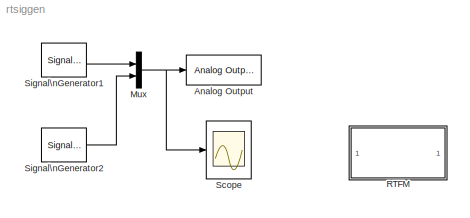
MODEL rtsiggen
KIND model
BLOCK [Reference] Analog Output  REF=rtwinlib/Analog Output
  Channels = 1:2
  DrvAddress = 0
  DrvOptions = 0
  FinalValue = []
  InitialValue = []
  Ports = [1]
  RangeMode = 1
  SampleTime = 1e-3
  SourceBlock = rtwinlib/Analog Output
  SourceType = RTWin Analog Output
  VoltRange = 1
BLOCK [Mux] Mux
  DisplayOption = bar
  Inputs = 2
  Ports = [2, 1]
BLOCK [SubSystem] RTFM 
  MaskDisplay = disp('Info')
  MaskIconFrame = on
  MaskIconOpaque = on
  MaskIconRotate = none
  MaskIconUnits = autoscale
  MaskType = Frame-Based Simulation Info
  Ports = []
  TreatAsAtomicUnit = off
BLOCK [Scope] Scope
  DataFormat = Structure
  ExtModeLoggingTrig = on
  ExtModeUploadOption = log
  NumInputPorts = 1
  Ports = [1]
  TimeRange = 1
  YMax = 2.17647
  YMin = -2.11111
  ZoomMode = yonly
BLOCK [SignalGenerator] Signal\nGenerator1
  Amplitude = 1.000000
  Frequency = 5
  Ports = [0, 1]
BLOCK [SignalGenerator] Signal\nGenerator2
  Amplitude = 0.25000000
  Frequency = 2.500000
  Ports = [0, 1]
  WaveForm = square
ANNOTATION RTFM : How to run this demo:\n\n1) Open the Analog Output block and select your data acquisition board.\n If there's no board installed, install it using the Install new board button.\n2) Build the model using Tools->Real-Time Workshop->Build Model.\n3) Connect to the real-time code using Simulation->Connect to target.\n4) Start the real-time execution using Simulation->Start real-time code.\n\nNote: To ...<+82ch>
NET Mux:1 -> Analog Output:1, Scope:1
LINE Signal\nGenerator1:1 -> Mux:1
LINE Signal\nGenerator2:1 -> Mux:2
note: NET lines group one-source signal fan-out (src -> all destinations, sorted); 1:1 wires keep LINE
